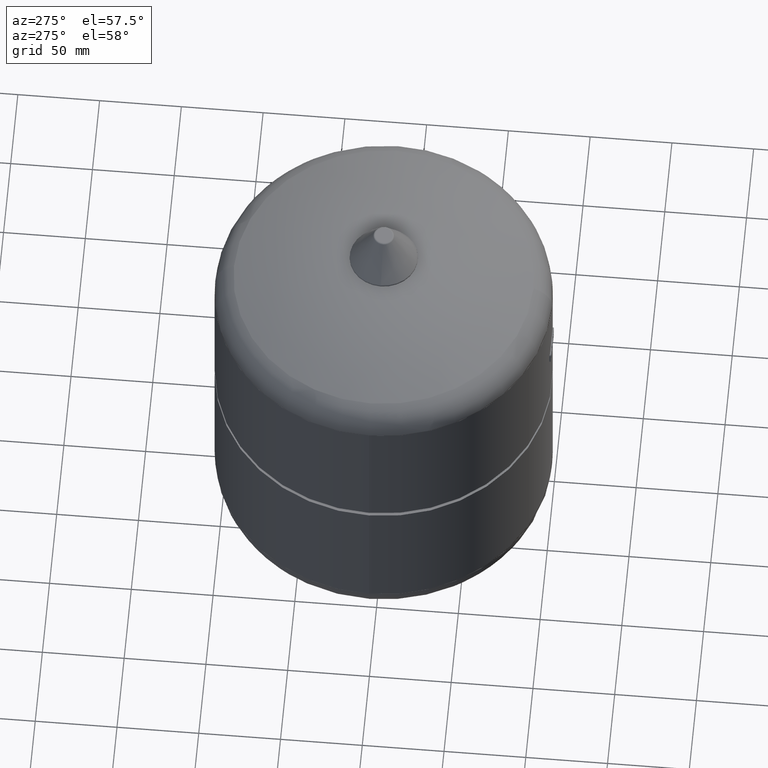
[diagram: clean part render]
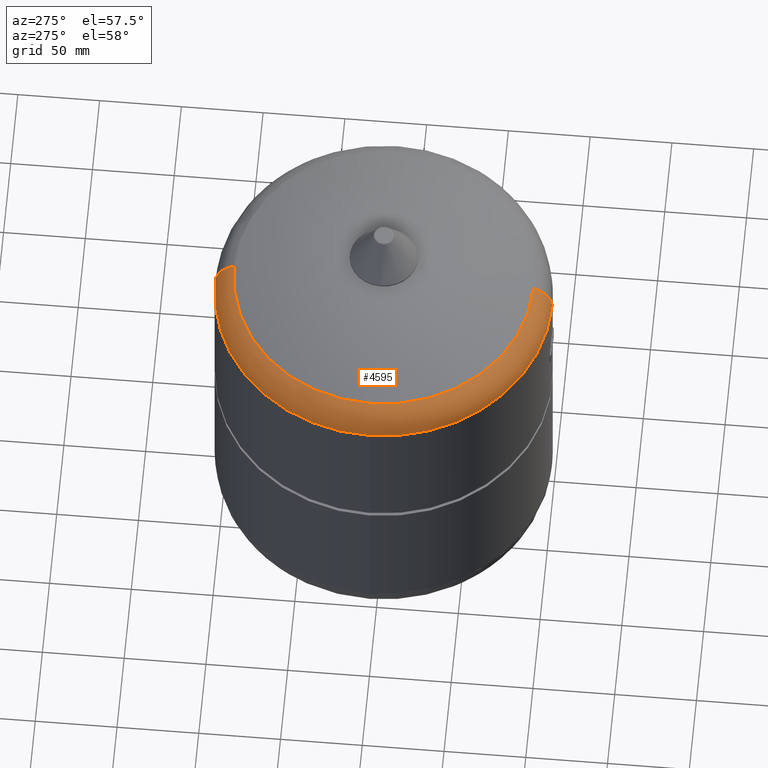
[diagram: same view with one face highlighted and labeled with its STEP entity id]
A machine part, auxiliary view. The second image highlights one B-rep face of the part: STEP entity #4595.
In plain terms, the highlighted toroidal blend (fillet) surface has major radius 82.5 mm and minor (blend) radius 20.5 mm.
Its self-contained STEP definition (entity closure, byte-faithful):
#4481=CARTESIAN_POINT('',(-103.0,1.266126E-014,271.260276216440560));
#4482=VERTEX_POINT('',#4481);
#4489=CARTESIAN_POINT('',(7.746733E-015,102.999999999999990,271.260276216440560));
#4490=VERTEX_POINT('',#4489);
#4491=CARTESIAN_POINT('',(-4.866713E-015,4.781197E-017,271.260276216440560));
#4492=DIRECTION('',(0.0,0.0,-1.0));
#4493=DIRECTION('',(1.0,0.0,0.0));
#4494=AXIS2_PLACEMENT_3D('',#4491,#4492,#4493);
#4495=CIRCLE('',#4494,102.999999999999990);
#4496=EDGE_CURVE('',#4482,#4490,#4495,.T.);
#4513=CARTESIAN_POINT('',(-4.866713E-015,-102.999999999999990,271.260276216440560));
#4514=VERTEX_POINT('',#4513);
#4515=CARTESIAN_POINT('',(-2.615178E-015,-91.568364611260066,289.645454031116340));
#4516=VERTEX_POINT('',#4515);
#4517=CARTESIAN_POINT('',(-4.866713E-015,-82.500000000000014,271.260276216440560));
#4518=DIRECTION('',(-1.0,0.0,0.0));
#4519=DIRECTION('',(0.0,-1.0,0.0));
#4520=AXIS2_PLACEMENT_3D('',#4517,#4518,#4519);
#4521=CIRCLE('',#4520,20.500000000000004);
#4522=EDGE_CURVE('',#4514,#4516,#4521,.T.);
#4532=CARTESIAN_POINT('',(8.598342E-015,91.568364611260066,289.645454031116340));
#4533=VERTEX_POINT('',#4532);
#4534=CARTESIAN_POINT('',(5.236290E-015,82.500000000000014,271.260276216440560));
#4535=DIRECTION('',(1.0,0.0,0.0));
#4536=DIRECTION('',(0.0,1.0,0.0));
#4537=AXIS2_PLACEMENT_3D('',#4534,#4535,#4536);
#4538=CIRCLE('',#4537,20.500000000000004);
#4539=EDGE_CURVE('',#4490,#4533,#4538,.T.);
#4567=CARTESIAN_POINT('',(-2.615178E-015,3.425114E-015,289.645454031116340));
#4568=DIRECTION('',(0.0,0.0,-1.0));
#4569=DIRECTION('',(1.0,0.0,0.0));
#4570=AXIS2_PLACEMENT_3D('',#4567,#4568,#4569);
#4571=CIRCLE('',#4570,91.568364611260066);
#4572=EDGE_CURVE('',#4516,#4533,#4571,.T.);
#4577=CARTESIAN_POINT('',(-4.866713E-015,4.781197E-017,271.260276216440560));
#4578=DIRECTION('',(-1.224647E-016,-1.836970E-016,-1.0));
#4579=DIRECTION('',(0.0,-1.0,0.0));
#4580=AXIS2_PLACEMENT_3D('',#4577,#4578,#4579);
#4581=TOROIDAL_SURFACE('',#4580,82.500000000000014,20.500000000000004);
#4582=ORIENTED_EDGE('',*,*,#4522,.T.);
#4583=ORIENTED_EDGE('',*,*,#4572,.T.);
#4584=ORIENTED_EDGE('',*,*,#4539,.F.);
#4585=ORIENTED_EDGE('',*,*,#4496,.F.);
#4586=CARTESIAN_POINT('',(-4.866713E-015,4.781197E-017,271.260276216440560));
#4587=DIRECTION('',(0.0,0.0,-1.0));
#4588=DIRECTION('',(1.0,0.0,0.0));
#4589=AXIS2_PLACEMENT_3D('',#4586,#4587,#4588);
#4590=CIRCLE('',#4589,102.999999999999990);
#4591=EDGE_CURVE('',#4514,#4482,#4590,.T.);
#4592=ORIENTED_EDGE('',*,*,#4591,.F.);
#4593=EDGE_LOOP('',(#4582,#4583,#4584,#4585,#4592));
#4594=FACE_OUTER_BOUND('',#4593,.T.);
#4595=ADVANCED_FACE('',(#4594),#4581,.T.);